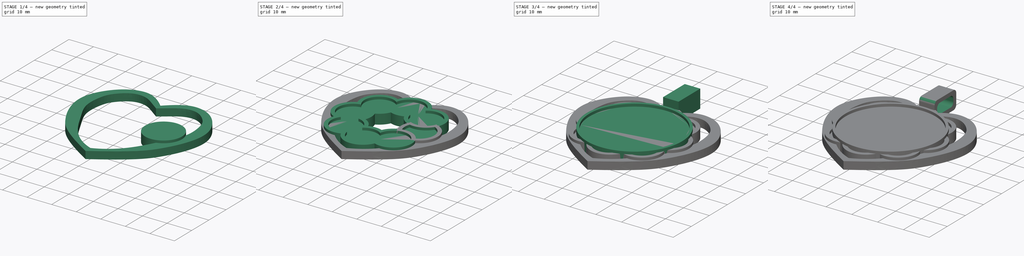
[diagram: build sequence overview — one tinted view per stage of 4, left to right]
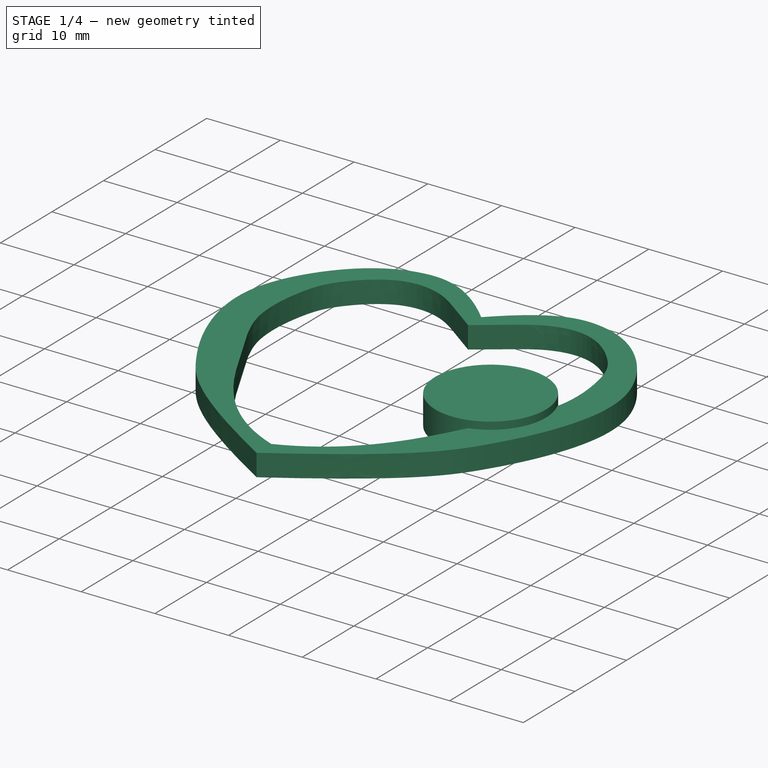
[diagram: stage 1 of 4 — iso view after this stage's code; geometry added in this stage tinted green]
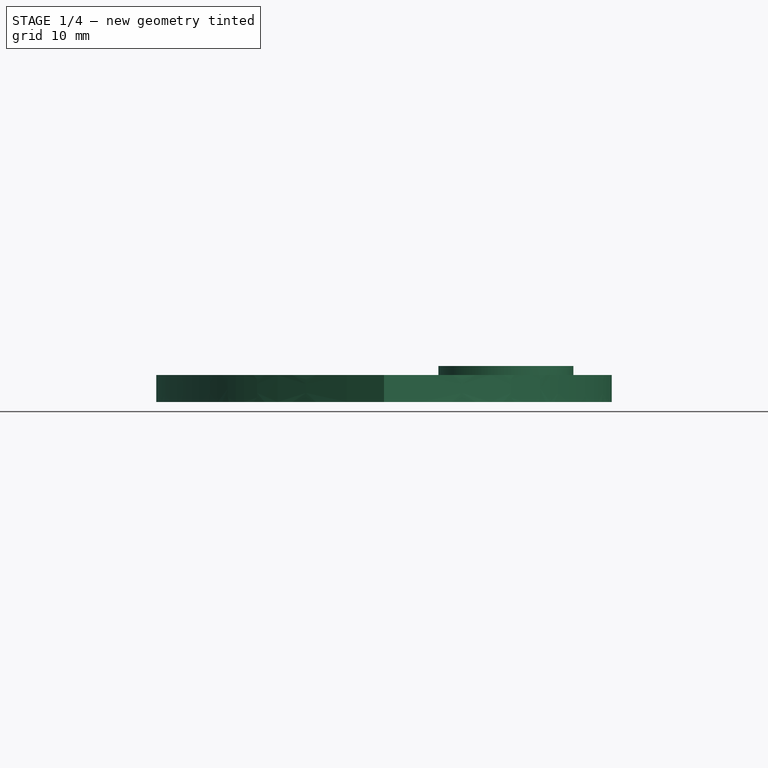
[diagram: stage 1 of 4 — front view after this stage's code; geometry added in this stage tinted green]
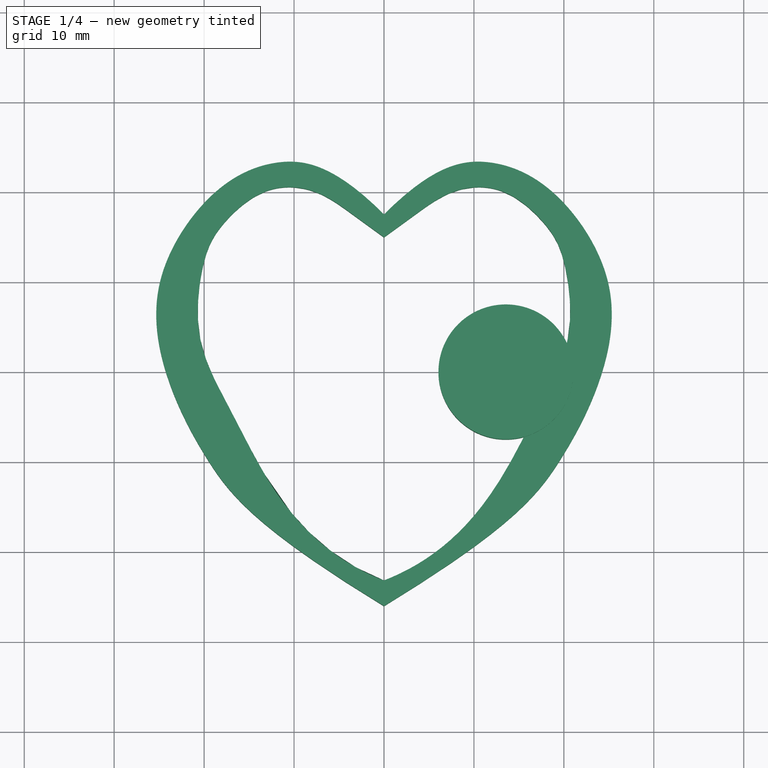
[diagram: stage 1 of 4 — top view after this stage's code; geometry added in this stage tinted green]
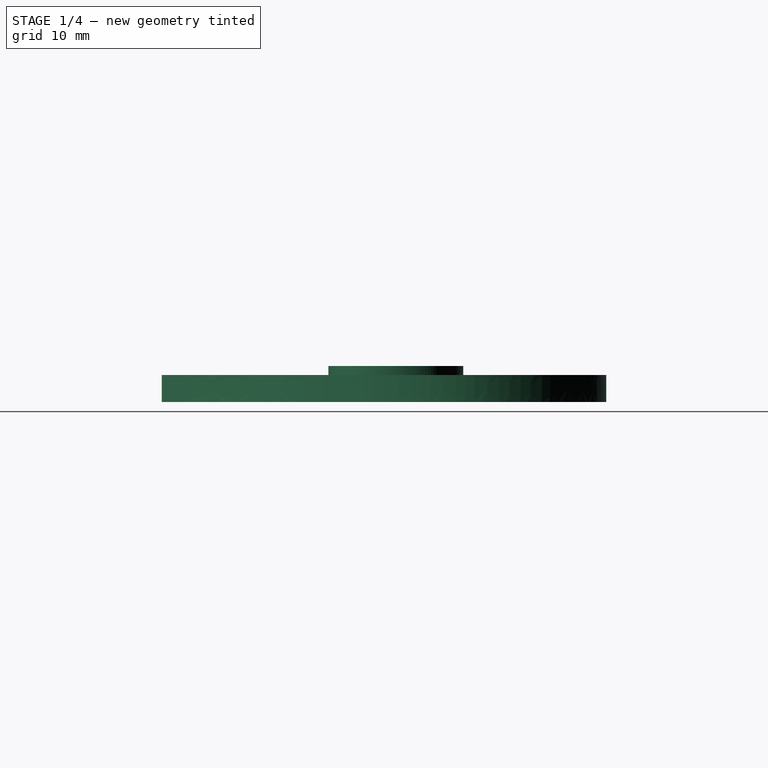
[diagram: stage 1 of 4 — right view after this stage's code; geometry added in this stage tinted green]
FCSTD DOCUMENT  (FreeCAD 0.21R33771 (Git))
Label: медаль серце
License: All rights reserved
LicenseURL: https://en.wikipedia.org/wiki/All_rights_reserved
objects: Sketcher::SketchObject×7, PartDesign::Pad×4, PartDesign::Pocket×3, PartDesign::PolarPattern×1, PartDesign::Fillet×1, PartDesign::Body×1
note: 25 computed .brp shape members not serialized (recipe doc carries the construction recipe); baked Part::Feature solids carry a one-line shape summary decoded from their .brp

FEATURE [Sketcher::SketchObject] Sketch
  FullyConstrained = false
  MapMode = 5
  Support = -> [XY_Plane]
  sketch-geometry (57):
    g0: GeomPoint X=3e-16 Y=17.5321 Z=0
    g1: GeomPoint X=-5.55654 Y=23.0882 Z=0
    g2: GeomPoint X=-12.2364 Y=24.3207 Z=0
    g3: GeomPoint X=-20 Y=20 Z=0
    g4: GeomPoint X=-26.041 Y=10.2201 Z=0
    g5: GeomPoint X=-24.9861 Y=0.3331 Z=0
    g6: GeomPoint X=-20.0002 Y=-9.99985 Z=0
    g7: GeomPoint X=-14.1295 Y=-17.3837 Z=0
    g8: GeomPoint X=0 Y=-26.025 Z=0
    g9-g17: Circle x9 (B-spline internal-alignment scaffolding for g18; pole/knot coordinates omitted)
    g18: BSplineCurve PolesCount=9 KnotsCount=7 Degree=3 IsPeriodic=0
    g19-g25: GeomPoint x7 (B-spline internal-alignment scaffolding for g18; pole/knot coordinates omitted)
    g26: GeomPoint X=0 Y=14.9792 Z=0
    g27: GeomPoint X=-3.40604 Y=17.3599 Z=0
    g28: GeomPoint X=-6.87289 Y=20.4886 Z=0
    g29: GeomPoint X=-13.3438 Y=20.9915 Z=0
    g30: GeomPoint X=-18.5949 Y=16.0624 Z=0
    g31: GeomPoint X=-20.2504 Y=12.5275 Z=0
    g32: GeomPoint X=-21.3487 Y=3.46189 Z=0
    g33: GeomPoint X=-16.851 Y=-4.53825 Z=0
    g34: GeomPoint X=-9.17944 Y=-19.6152 Z=0
    g35: GeomPoint X=0 Y=-23.1687 Z=0
    g36-g45: Circle x10 (B-spline internal-alignment scaffolding for g46; pole/knot coordinates omitted)
    g46: BSplineCurve PolesCount=10 KnotsCount=8 Degree=3 IsPeriodic=0
    g47-g54: GeomPoint x8 (B-spline internal-alignment scaffolding for g46; pole/knot coordinates omitted)
    g55: BSplineCurve PolesCount=9 KnotsCount=7 Degree=3 IsPeriodic=0
    g56: BSplineCurve PolesCount=10 KnotsCount=8 Degree=3 IsPeriodic=0
  constraints (45):
    c: PointOnObject(g8,g-2)
    c: Weight(g9) = 1
    c: Coincident(g18,g0)
    c: Equal(g9,g10)
    c: Coincident(g10,g1)
    c: Equal(g9,g11)
    c: Coincident(g11,g2)
    c: Equal(g9,g12)
    c: Coincident(g12,g3)
    c: Equal(g9,g13)
    c: Coincident(g13,g4)
    c: Equal(g9,g14)
    c: Coincident(g14,g5)
    c: Equal(g9,g15)
    c: Coincident(g15,g6)
    c: Equal(g9,g16)
    c: Coincident(g16,g7)
    c: Equal(g9,g17)
    c: Coincident(g18,g8)
    c: InternalAlignment(g9-g17 -> g18) x9
    c: InternalAlignment(g19-g25 -> g18) x7
    c: PointOnObject(g26,g-2)
    c: PointOnObject(g35,g-2)
    c: Weight(g36) = 1
    c: Coincident(g46,g26)
    c: Equal(g36,g37)
    c: Coincident(g37,g27)
    c: Equal(g36,g38)
    c: Coincident(g38,g28)
    c: Equal(g36,g39)
    c: Coincident(g39,g29)
    c: Equal(g36,g40)
    c: Coincident(g40,g30)
    c: Equal(g36,g41)
    c: Coincident(g41,g31)
    c: Equal(g36,g42)
    c: Coincident(g42,g32)
    c: Equal(g36,g43)
    c: Coincident(g43,g33)
    c: Equal(g36,g44)
    c: Coincident(g44,g34)
    c: Equal(g36,g45)
    c: Coincident(g46,g35)
    c: InternalAlignment(g36-g45 -> g46) x10
    c: InternalAlignment(g47-g54 -> g46) x8
FEATURE [PartDesign::Pad] Pad
  Direction = (0,0,1)
  Length = 3
  Length2 = 10
  Profile = -> Sketch
  ReferenceAxis = -> Sketch [N_Axis]
  Type = 0
FEATURE [Sketcher::SketchObject] Sketch001
  FullyConstrained = false
  MapMode = 5
  Support = -> [XY_Plane]
  sketch-geometry (1):
    g0: Circle CenterX=13.5508 CenterY=0 CenterZ=0 NormalX=0 NormalY=0 NormalZ=1 AngleXU=0 Radius=7.5
  constraints (2):
    c: PointOnObject(g0,g-1)
    c: Diameter(g0) = 15
FEATURE [PartDesign::Pad] Pad001
  BaseFeature = -> Pad
  Direction = (0,0,1)
  Length = 4
  Length2 = 10
  Profile = -> Sketch001
  ReferenceAxis = -> Sketch001 [N_Axis]
  Type = 0
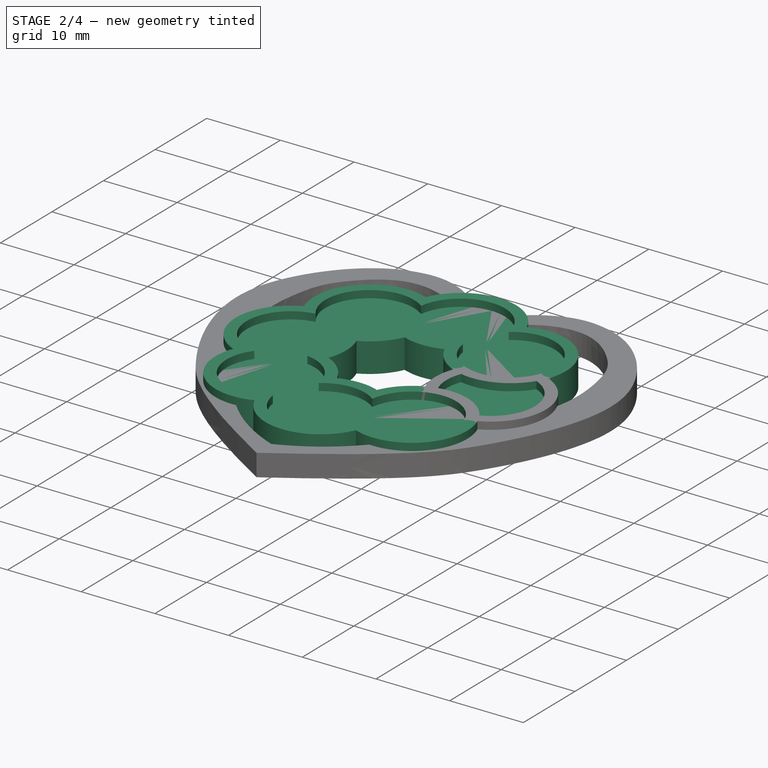
[diagram: stage 2 of 4 — iso view after this stage's code; geometry added in this stage tinted green]
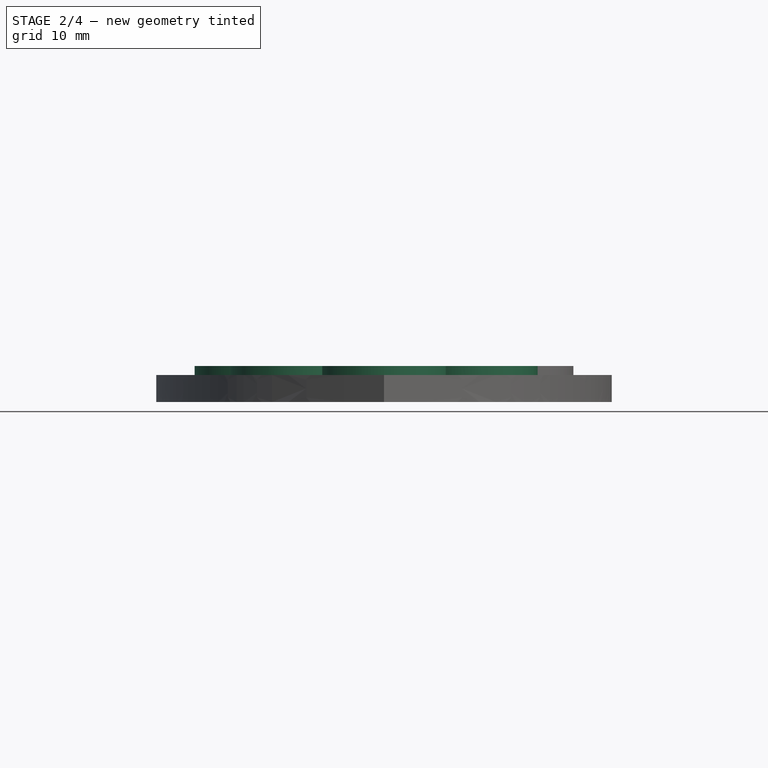
[diagram: stage 2 of 4 — front view after this stage's code; geometry added in this stage tinted green]
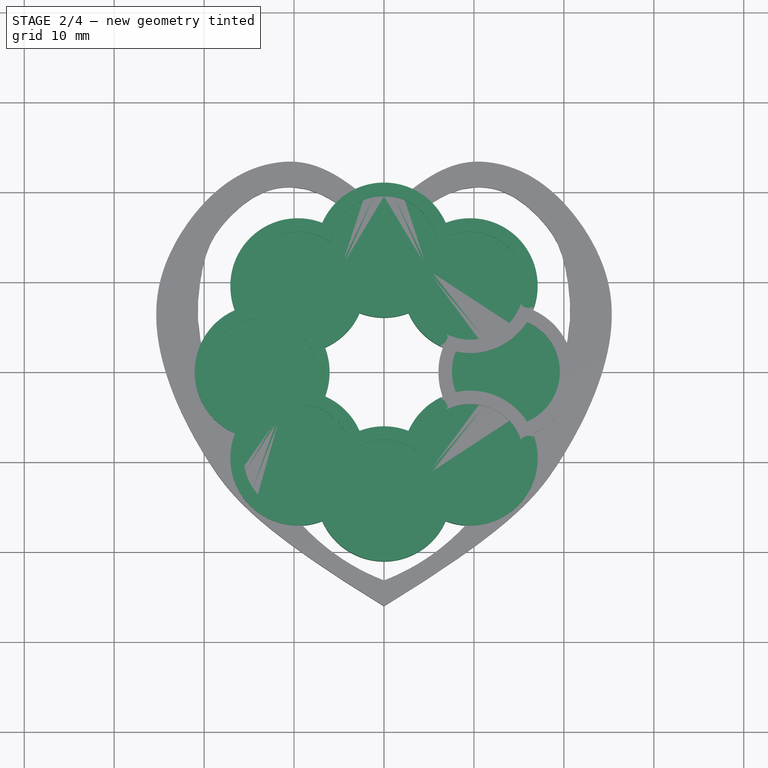
[diagram: stage 2 of 4 — top view after this stage's code; geometry added in this stage tinted green]
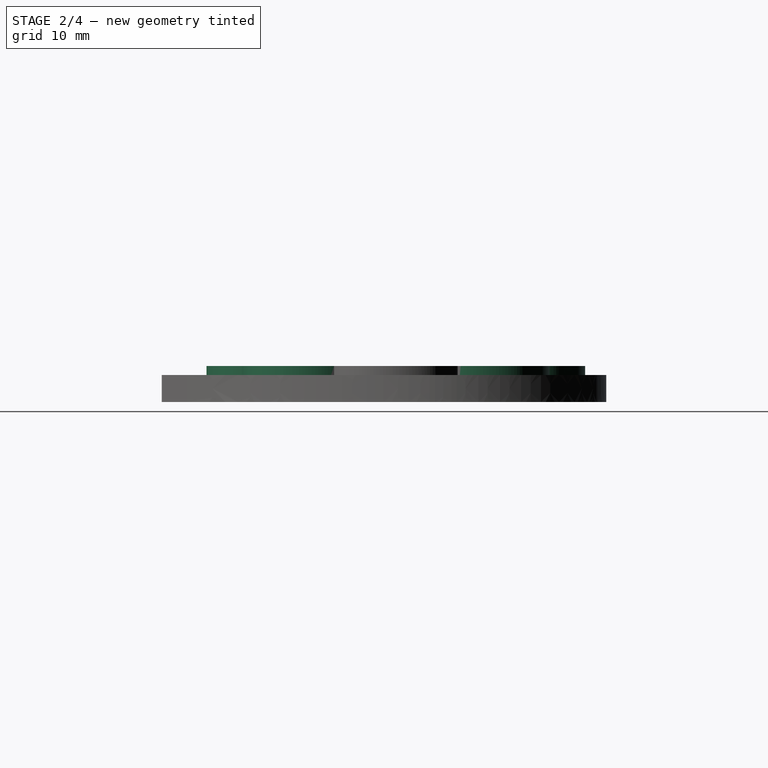
[diagram: stage 2 of 4 — right view after this stage's code; geometry added in this stage tinted green]
FEATURE [Sketcher::SketchObject] Sketch002
  ExternalGeometry = -> [Pad001]
  FullyConstrained = true
  MapMode = 5
  Placement = pos=(0,0,4) rot=(0,0,1;0rad)
  Support = -> [Pad001]
  sketch-geometry (1):
    g0: Circle CenterX=13.5508 CenterY=0 CenterZ=0 NormalX=0 NormalY=0 NormalZ=1 AngleXU=0 Radius=6
  constraints (2):
    c: Coincident(g0,g-3)
    c: Diameter(g0) = 12
FEATURE [PartDesign::Pocket] Pocket
  BaseFeature = -> Pad001
  Direction = (0,0,-1)
  Length = 1
  Length2 = 5
  Profile = -> Sketch002
  ReferenceAxis = -> Sketch002 [N_Axis]
  Type = 0
FEATURE [PartDesign::PolarPattern] PolarPattern
  Angle = 360
  Axis = -> Sketch001 [N_Axis]
  BaseFeature = -> Pocket
  Occurrences = 8
  Originals = -> [Pad001,Pocket]
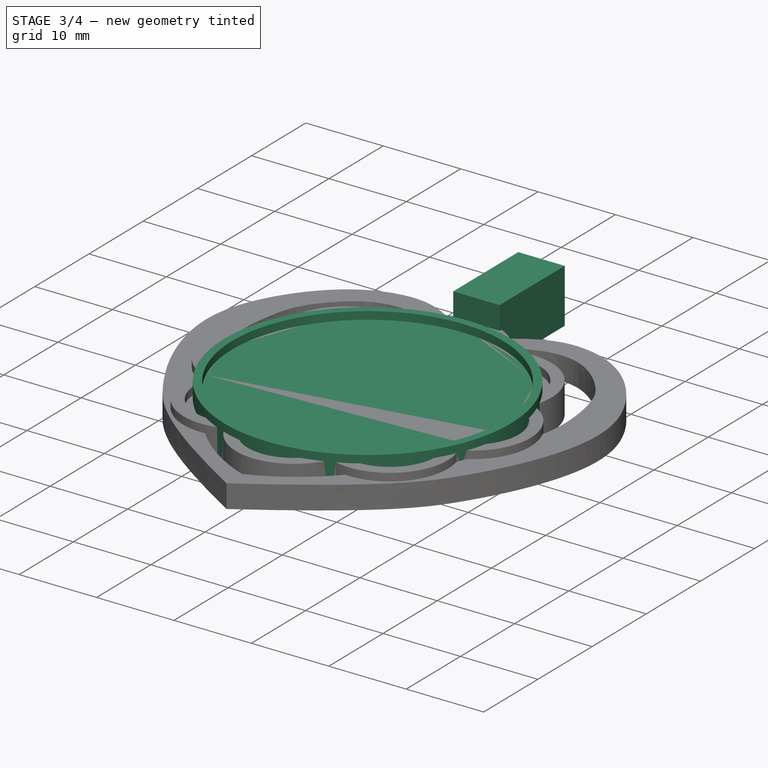
[diagram: stage 3 of 4 — iso view after this stage's code; geometry added in this stage tinted green]
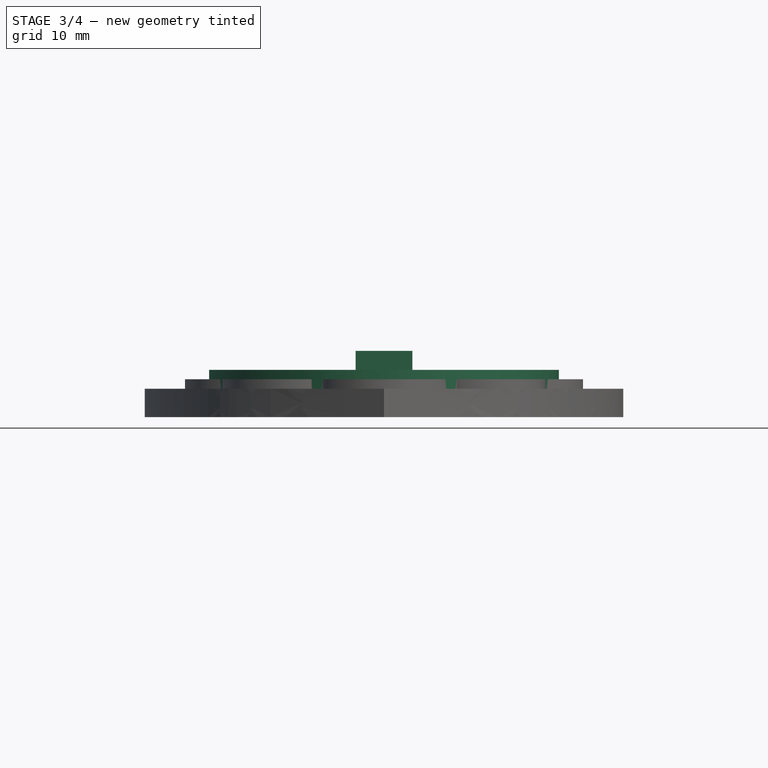
[diagram: stage 3 of 4 — front view after this stage's code; geometry added in this stage tinted green]
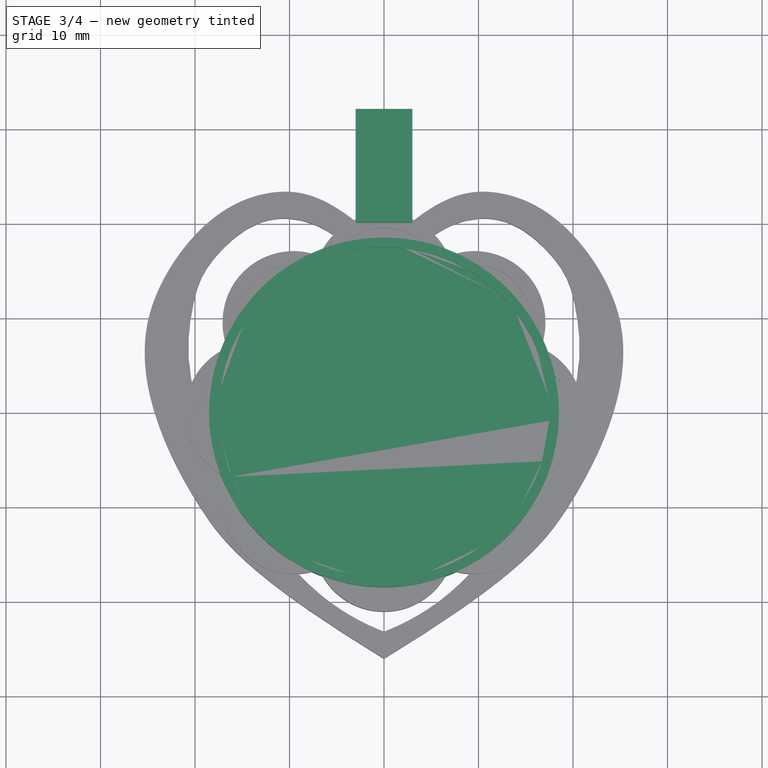
[diagram: stage 3 of 4 — top view after this stage's code; geometry added in this stage tinted green]
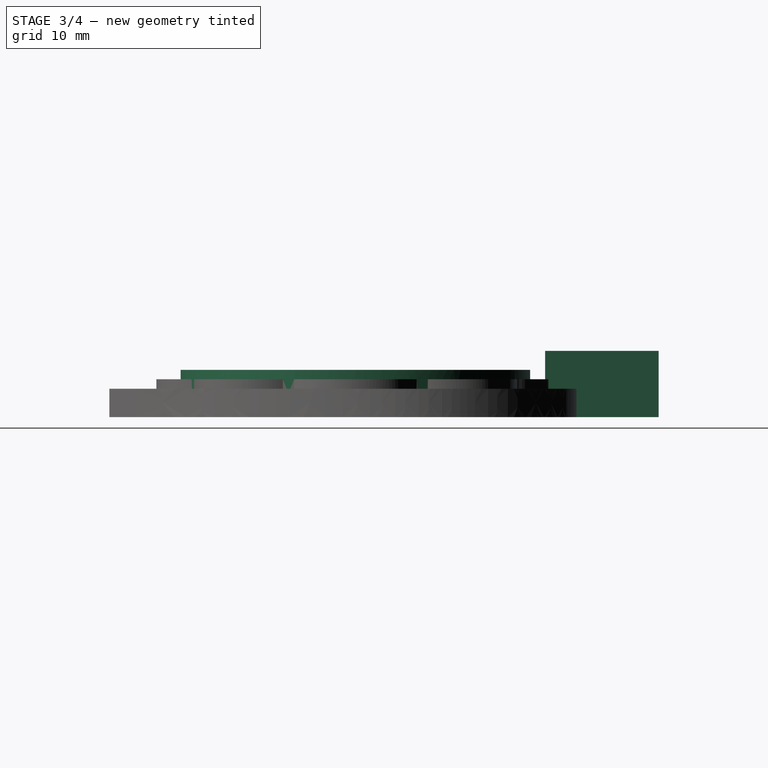
[diagram: stage 3 of 4 — right view after this stage's code; geometry added in this stage tinted green]
FEATURE [Sketcher::SketchObject] Sketch003
  FullyConstrained = true
  MapMode = 5
  Support = -> [XY_Plane]
  sketch-geometry (1):
    g0: Circle CenterX=0 CenterY=0 CenterZ=0 NormalX=0 NormalY=0 NormalZ=1 AngleXU=0 Radius=18.5
  constraints (2):
    c: Coincident(g0,g-1)
    c: Diameter(g0) = 37
FEATURE [PartDesign::Pad] Pad002
  BaseFeature = -> PolarPattern
  Direction = (0,0,1)
  Length = 5
  Length2 = 10
  Profile = -> Sketch003
  ReferenceAxis = -> Sketch003 [N_Axis]
  Type = 0
FEATURE [Sketcher::SketchObject] Sketch004
  FullyConstrained = true
  MapMode = 5
  Placement = pos=(0,0,5) rot=(0,0,1;0rad)
  Support = -> [Pad002]
  sketch-geometry (1):
    g0: Circle CenterX=0 CenterY=0 CenterZ=0 NormalX=0 NormalY=0 NormalZ=1 AngleXU=0 Radius=17.5
  constraints (2):
    c: Coincident(g0,g-1)
    c: Diameter(g0) = 35
FEATURE [PartDesign::Pocket] Pocket001
  BaseFeature = -> Pad002
  Direction = (0,0,-1)
  Length = 1
  Length2 = 5
  Profile = -> Sketch004
  ReferenceAxis = -> Sketch004 [N_Axis]
  Type = 0
FEATURE [Sketcher::SketchObject] Sketch005
  FullyConstrained = false
  MapMode = 5
  Support = -> [XY_Plane]
  sketch-geometry (5):
    g0: LineSegment StartX=-3 StartY=32.0808 StartZ=0 EndX=-3 EndY=20.0808 EndZ=0
    g1: LineSegment StartX=-3 StartY=20.0808 StartZ=0 EndX=3 EndY=20.0808 EndZ=0
    g2: LineSegment StartX=3 StartY=20.0808 StartZ=0 EndX=3 EndY=32.0808 EndZ=0
    g3: LineSegment StartX=3 StartY=32.0808 StartZ=0 EndX=-3 EndY=32.0808 EndZ=0
    g4: GeomPoint X=0 Y=26.0808 Z=0
  constraints (12):
    c: Coincident(g0,g1)
    c: Coincident(g1,g2)
    c: Coincident(g2,g3)
    c: Coincident(g3,g0)
    c: Horizontal(g1)
    c: Horizontal(g3)
    c: Vertical(g0)
    c: Vertical(g2)
    c: Symmetric(g1,g0,g4)
    c: PointOnObject(g4,g-2)
    c: DistanceY(g2,g2) = 12
    c: DistanceX(g3,g3) = 6
FEATURE [PartDesign::Pad] Pad003
  BaseFeature = -> Pocket001
  Direction = (0,0,1)
  Length = 7
  Length2 = 10
  Profile = -> Sketch005
  ReferenceAxis = -> Sketch005 [N_Axis]
  Type = 0
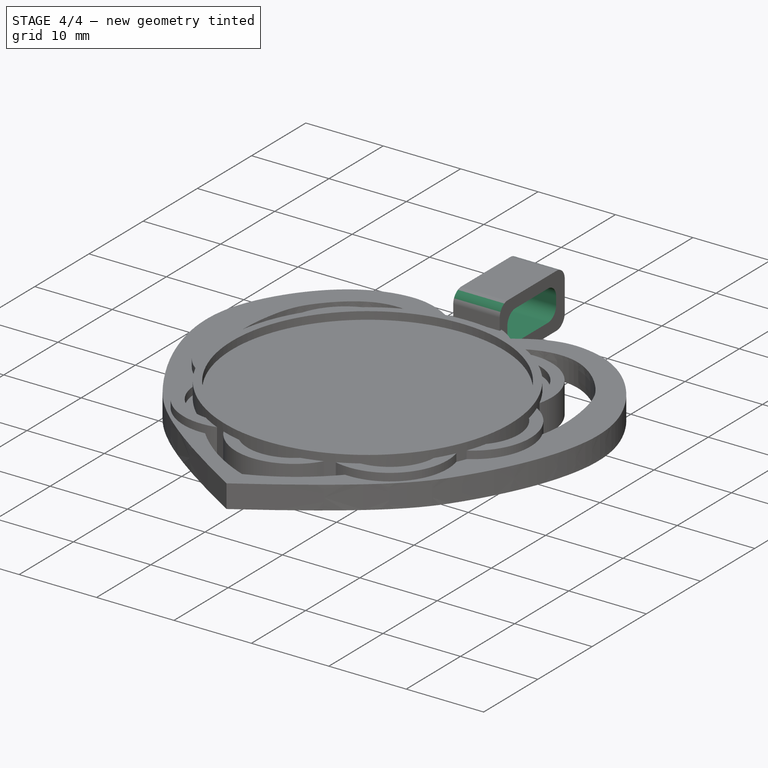
[diagram: stage 4 of 4 — iso view after this stage's code; geometry added in this stage tinted green]
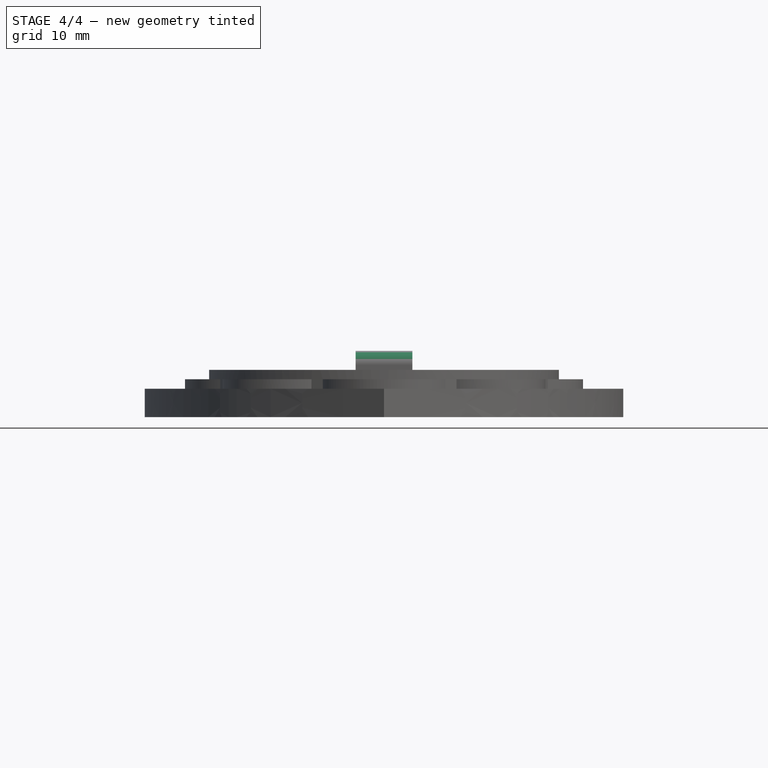
[diagram: stage 4 of 4 — front view after this stage's code; geometry added in this stage tinted green]
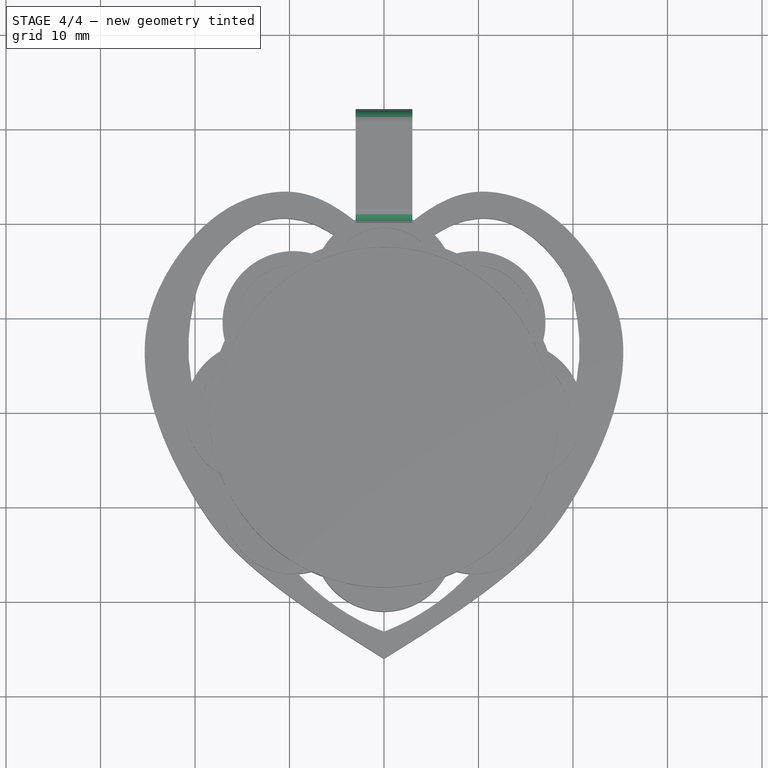
[diagram: stage 4 of 4 — top view after this stage's code; geometry added in this stage tinted green]
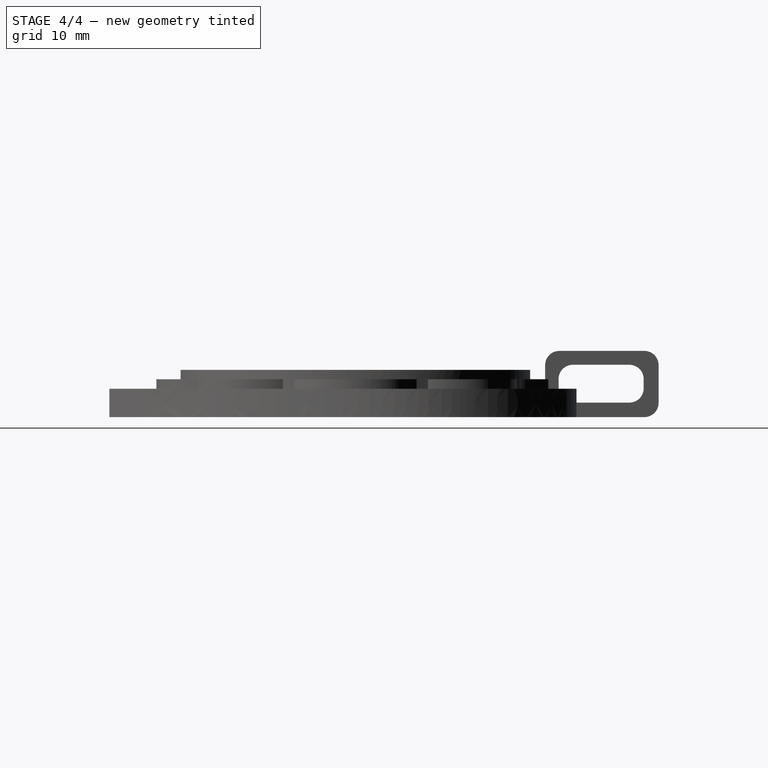
[diagram: stage 4 of 4 — right view after this stage's code; geometry added in this stage tinted green]
FEATURE [Sketcher::SketchObject] Sketch006
  FullyConstrained = false
  MapMode = 5
  Placement = pos=(3,0,0) rot=(0.57735,0.57735,0.57735;2.0944rad)
  Support = -> [Pad003]
  sketch-geometry (5):
    g0: LineSegment StartX=21.5 StartY=5.53221 StartZ=0 EndX=21.5 EndY=1.53221 EndZ=0
    g1: LineSegment StartX=21.5 StartY=1.53221 StartZ=0 EndX=30.5 EndY=1.53221 EndZ=0
    g2: LineSegment StartX=30.5 StartY=1.53221 StartZ=0 EndX=30.5 EndY=5.53221 EndZ=0
    g3: LineSegment StartX=30.5 StartY=5.53221 StartZ=0 EndX=21.5 EndY=5.53221 EndZ=0
    g4: GeomPoint X=26 Y=3.53221 Z=0
  constraints (11):
    c: Coincident(g0,g1)
    c: Coincident(g1,g2)
    c: Coincident(g2,g3)
    c: Coincident(g3,g0)
    c: Horizontal(g1)
    c: Horizontal(g3)
    c: Vertical(g0)
    c: Vertical(g2)
    c: Symmetric(g1,g0,g4)
    c: DistanceX(g3,g3) = 9
    c: DistanceY(g2,g2) = 4
FEATURE [PartDesign::Pocket] Pocket002
  BaseFeature = -> Pad003
  Direction = (-1,0,0)
  Length = 5
  Length2 = 5
  Profile = -> Sketch006
  ReferenceAxis = -> Sketch006 [N_Axis]
  Type = 2
FEATURE [PartDesign::Fillet] Fillet
  Base = -> Pocket002 [Edge304,Edge305,Edge308,Edge198,Edge306,Edge307,Edge309]
  BaseFeature = -> Pocket002
  Radius = 1.5
  SupportTransform = false
  UseAllEdges = false
FEATURE [PartDesign::Body] Body  label="Тело"
  Group = -> [Sketch,Pad,Sketch001,Pad001,Sketch002,Pocket,PolarPattern,Sketch003,Pad002,Sketch004,Pocket001,Sketch005,Pad003,Sketch006,Pocket002,Fillet]
  Origin = -> Origin
  Tip = -> Fillet
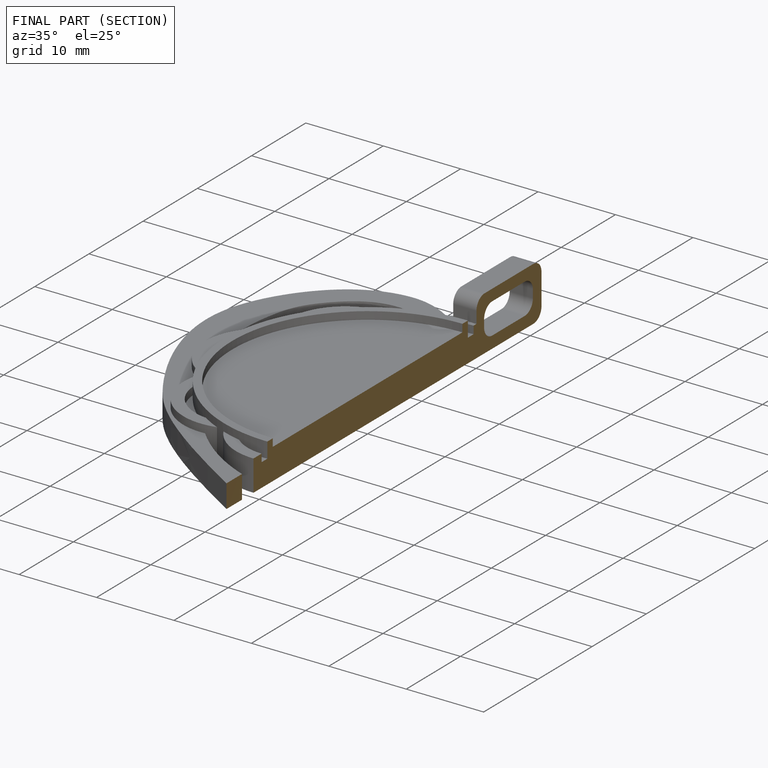
[diagram: finished part — half-section view (interior)]
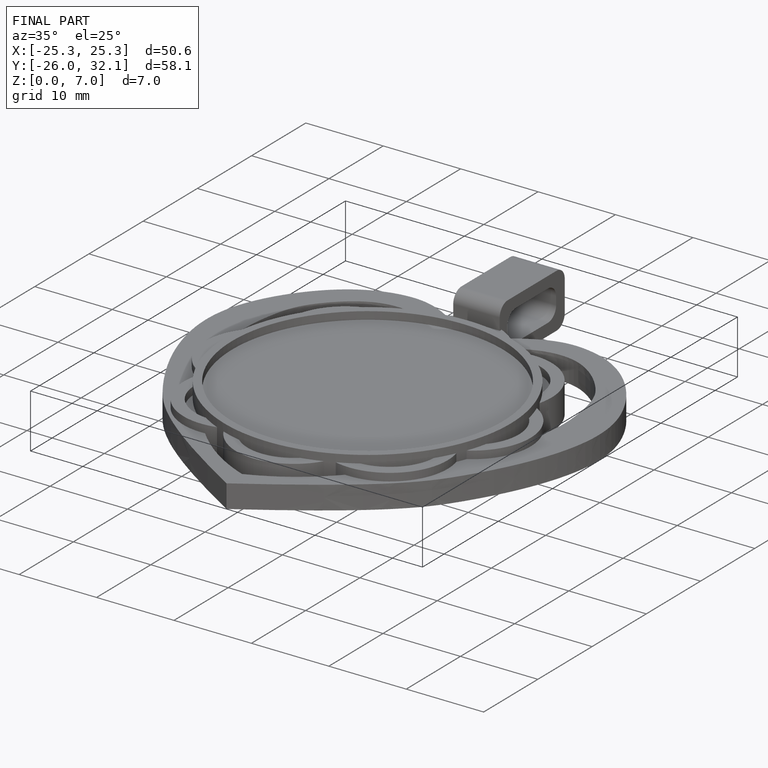
[diagram: finished part — iso view with bounding-box wireframe]
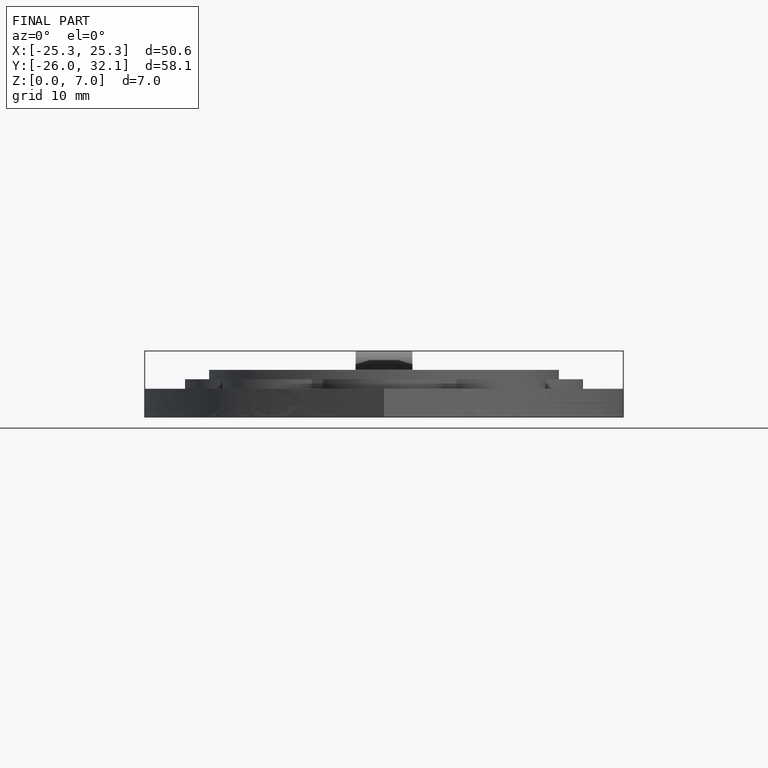
[diagram: finished part — front view with bounding-box wireframe]
